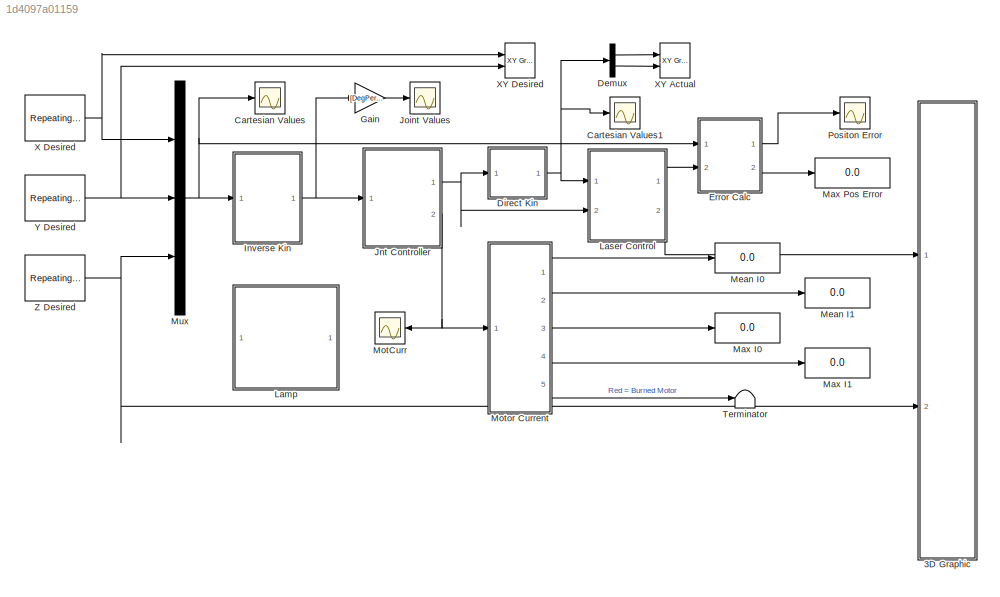
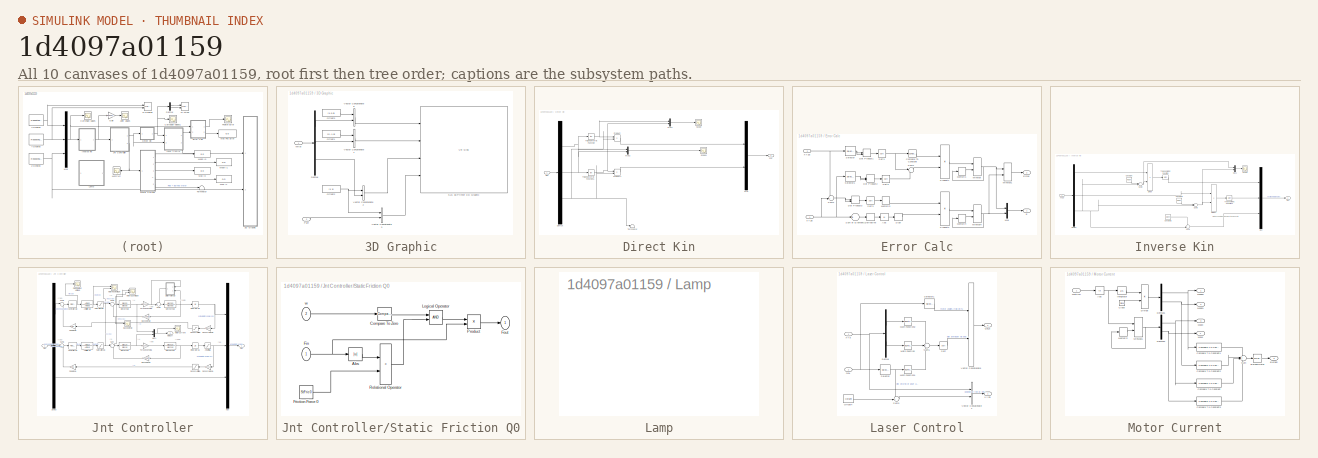
[diagram: thumbnail index - all 10 canvases of the model, root first then tree order]
MODEL slx_1d4097a01159
KIND model
CONFIG AbsTol = auto
CONFIG EnableMultiTasking = on
CONFIG FixedStep = auto
CONFIG InitFcn = CONSTANTS\nDEFAULT\nSystem\nControl
CONFIG MaxStep = auto
CONFIG MinStep = auto
CONFIG PreLoadFcn = CONSTANTS\nDEFAULT\nSystem\nControl
CONFIG RelTol = 1e-3
CONFIG SampleTimeConstraint = Unconstrained
CONFIG Solver = ode45
CONFIG SolverName = ode45
CONFIG StartTime = 0.0
CONFIG StopTime = 20
BLOCK [SubSystem] 3D Graphic
  Ports = [2]
  RequestExecContextInheritance = off
  Variant = off
BLOCK [Demux] 3D Graphic/Demux
  DisplayOption = bar
  Outputs = 3
  Ports = [1, 3]
BLOCK [Constant] 3D Graphic/Offset1
  Value = [0 -1 0]
BLOCK [Constant] 3D Graphic/Offset2
  Value = [1 1]
BLOCK [Constant] 3D Graphic/Offset3
  Value = [1 0 0]
BLOCK [Inport] 3D Graphic/Part
  IconDisplay = Port number
  Port = 2
BLOCK [Reference] 3D Graphic/SLS 3d Printer 3-D Graphic  REF=vrlib/VR Sink
  InstantiateOnLoad = on
  Ports = [4]
  SourceBlock = vrlib/VR Sink
  SourceProductBaseCode = VR
  SourceProductName = Simulink 3D Animation
  SourceType = Virtual Reality Sink
BLOCK [Concatenate] 3D Graphic/Vector Concatenate1
  Ports = [2, 1]
BLOCK [Concatenate] 3D Graphic/Vector Concatenate2
  Ports = [2, 1]
BLOCK [Concatenate] 3D Graphic/Vector Concatenate3
  Ports = [2, 1]
BLOCK [Concatenate] 3D Graphic/Vector Concatenate5
  Ports = [2, 1]
BLOCK [Inport] 3D Graphic/Wrist
  IconDisplay = Port number
BLOCK [Scope] Cartesian Values
  NumInputPorts = 1
  Ports = [1]
  ScopeSpecificationString = Simulink.scopes.TimeScopeBlockCfg('CurrentConfiguration', extmgr.ConfigurationSet(extmgr.Configuration('Core','General UI',true),extmgr.Configuration('Core','Source UI',true),extmgr.Configuration('Sources','WiredSimulink',true,'DataLoggingVariableName','ScopeData1','DataLoggingLimitDataPoints',true,'DataLoggingSaveFormat','Array','DataLoggingDecimation','1','DataLoggingDecimateData',true),extmgr.C...<+1797ch>
BLOCK [Scope] Cartesian Values1
  NumInputPorts = 1
  Ports = [1]
  ScopeSpecificationString = Simulink.scopes.TimeScopeBlockCfg('CurrentConfiguration', extmgr.ConfigurationSet(extmgr.Configuration('Core','General UI',true),extmgr.Configuration('Core','Source UI',true),extmgr.Configuration('Sources','WiredSimulink',true,'DataLoggingVariableName','ScopeData1','DataLoggingLimitDataPoints',true,'DataLoggingSaveFormat','Array','DataLoggingDecimation','1','DataLoggingDecimateData',true),extmgr.C...<+1791ch>
BLOCK [Demux] Demux
  DisplayOption = bar
  Outputs = 2
  Ports = [1, 2]
BLOCK [SubSystem] Direct Kin
  Ports = [1, 1]
  RequestExecContextInheritance = off
  Variant = off
BLOCK [Demux] Direct Kin/Demux
  DisplayOption = bar
  Outputs = 3
  Ports = [1, 3]
BLOCK [Mux] Direct Kin/Mux
  DisplayOption = bar
  Inputs = 2
  Ports = [2, 1]
BLOCK [Mux] Direct Kin/Mux1
  DisplayOption = bar
  Inputs = 2
  Ports = [2, 1]
BLOCK [Mux] Direct Kin/Mux2
  DisplayOption = bar
  Inputs = 2
  Ports = [2, 1]
BLOCK [Product] Direct Kin/Product
  InputSameDT = off
  OutDataTypeStr = Inherit: Inherit via internal rule
  Ports = [2, 1]
  RndMeth = Floor
  SaturateOnIntegerOverflow = off
BLOCK [Product] Direct Kin/Product1
  InputSameDT = off
  OutDataTypeStr = Inherit: Inherit via internal rule
  Ports = [2, 1]
  RndMeth = Floor
  SaturateOnIntegerOverflow = off
BLOCK [Inport] Direct Kin/QaL
  IconDisplay = Port number
BLOCK [Scope] Direct Kin/Scope
  NumInputPorts = 1
  Ports = [1]
  ScopeSpecificationString = Simulink.scopes.TimeScopeBlockCfg('CurrentConfiguration', extmgr.ConfigurationSet(extmgr.Configuration('Core','General UI',true),extmgr.Configuration('Core','Source UI',true),extmgr.Configuration('Sources','WiredSimulink',true,'DataLoggingVariableName','ScopeData1'),extmgr.Configuration('Visuals','Time Domain',true,'SerializedDisplays',{struct('MinYLimReal','-0.84789','MaxYLimReal','0.09421','YLab...<+1433ch>
BLOCK [Scope] Direct Kin/Scope1
  NumInputPorts = 1
  Ports = [1]
  ScopeSpecificationString = Simulink.scopes.TimeScopeBlockCfg('CurrentConfiguration', extmgr.ConfigurationSet(extmgr.Configuration('Core','General UI',true),extmgr.Configuration('Core','Source UI',true),extmgr.Configuration('Sources','WiredSimulink',true,'DataLoggingVariableName','ScopeData3'),extmgr.Configuration('Visuals','Time Domain',true,'SerializedDisplays',{struct('MinYLimReal','-0.72658','MaxYLimReal','0.08073','YLab...<+1402ch>
BLOCK [Terminator] Direct Kin/Terminator
BLOCK [Trigonometry] Direct Kin/Trigonometric Function
  Operator = tan
  Ports = [1, 1]
BLOCK [Trigonometry] Direct Kin/Trigonometric Function1
  Operator = tan
  Ports = [1, 1]
BLOCK [Outport] Direct Kin/XYa
  IconDisplay = Port number
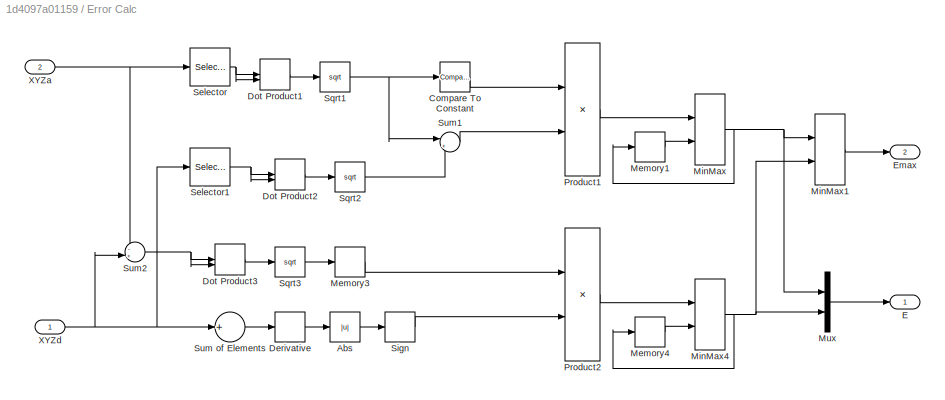
BLOCK [SubSystem] Error Calc
  Ports = [2, 2]
  RequestExecContextInheritance = off
  Variant = off
BLOCK [Abs] Error Calc/Abs
  SaturateOnIntegerOverflow = off
BLOCK [Reference] Error Calc/Compare To Constant  REF=simulink/Logic and Bit
Operations/Compare
To Constant
  Ports = [1, 1]
  SourceBlock = simulink/Logic and Bit\nOperations/Compare\nTo Constant
  SourceProductBaseCode = SL
  SourceProductName = Simulink
  SourceType = Compare To Constant
BLOCK [Derivative] Error Calc/Derivative
BLOCK [DotProduct] Error Calc/Dot Product1
  OutDataTypeStr = Inherit: Inherit via internal rule
BLOCK [DotProduct] Error Calc/Dot Product2
  OutDataTypeStr = Inherit: Inherit via internal rule
BLOCK [DotProduct] Error Calc/Dot Product3
  OutDataTypeStr = Inherit: Inherit via internal rule
BLOCK [Outport] Error Calc/E
  IconDisplay = Port number
BLOCK [Outport] Error Calc/Emax
  IconDisplay = Port number
  Port = 2
BLOCK [Memory] Error Calc/Memory1
BLOCK [Memory] Error Calc/Memory3
BLOCK [Memory] Error Calc/Memory4
BLOCK [MinMax] Error Calc/MinMax
  Function = max
  InputSameDT = off
  Inputs = 2
  Ports = [2, 1]
  SaturateOnIntegerOverflow = off
BLOCK [MinMax] Error Calc/MinMax1
  Function = max
  InputSameDT = off
  Inputs = 2
  Ports = [2, 1]
  SaturateOnIntegerOverflow = off
BLOCK [MinMax] Error Calc/MinMax4
  Function = max
  InputSameDT = off
  Inputs = 2
  Ports = [2, 1]
  SaturateOnIntegerOverflow = off
BLOCK [Mux] Error Calc/Mux
  DisplayOption = bar
  Inputs = 2
  Ports = [2, 1]
BLOCK [Product] Error Calc/Product1
  InputSameDT = off
  OutDataTypeStr = Inherit: Inherit via internal rule
  Ports = [2, 1]
  RndMeth = Floor
  SaturateOnIntegerOverflow = off
BLOCK [Product] Error Calc/Product2
  InputSameDT = off
  OutDataTypeStr = Inherit: Inherit via internal rule
  Ports = [2, 1]
  RndMeth = Floor
  SaturateOnIntegerOverflow = off
BLOCK [Selector] Error Calc/Selector
  IndexOptions = Index vector (dialog)
  Indices = [1 2]
  InputPortWidth = 3
  OutputSizes = 1
  Ports = [1, 1]
BLOCK [Selector] Error Calc/Selector1
  IndexOptions = Index vector (dialog)
  Indices = [1 2]
  InputPortWidth = 3
  OutputSizes = 1
  Ports = [1, 1]
BLOCK [Signum] Error Calc/Sign
BLOCK [Sqrt] Error Calc/Sqrt1
BLOCK [Sqrt] Error Calc/Sqrt2
BLOCK [Sqrt] Error Calc/Sqrt3
BLOCK [Sum] Error Calc/Sum of Elements
  InputSameDT = off
  Inputs = +
  OutDataTypeStr = Inherit: Inherit via internal rule
  Ports = [1, 1]
  SaturateOnIntegerOverflow = off
BLOCK [Sum] Error Calc/Sum1
  IconShape = round
  InputSameDT = off
  Inputs = |+-
  OutDataTypeStr = Inherit: Inherit via internal rule
  Ports = [2, 1]
  SaturateOnIntegerOverflow = off
BLOCK [Sum] Error Calc/Sum2
  IconShape = round
  InputSameDT = off
  Inputs = -+|
  OutDataTypeStr = Inherit: Inherit via internal rule
  Ports = [2, 1]
  SaturateOnIntegerOverflow = off
BLOCK [Inport] Error Calc/XYZa
  IconDisplay = Port number
  Port = 2
BLOCK [Inport] Error Calc/XYZd
  IconDisplay = Port number
BLOCK [Gain] Gain
  Gain = [DegPerRad DegPerRad 1]
  OutDataTypeStr = Inherit: Inherit via internal rule
  ParamDataTypeStr = Inherit: Inherit via internal rule
  SaturateOnIntegerOverflow = off
BLOCK [SubSystem] Inverse Kin
  Ports = [1, 1]
  RequestExecContextInheritance = off
  Variant = off
BLOCK [Constant] Inverse Kin/Constant
  Value = Height
BLOCK [Constant] Inverse Kin/Constant1
  Value = Height
BLOCK [Constant] Inverse Kin/Constant2
  Value = Height
BLOCK [Demux] Inverse Kin/Demux
  DisplayOption = bar
  Outputs = 3
  Ports = [1, 3]
BLOCK [Product] Inverse Kin/Divide
  InputSameDT = off
  Inputs = */
  OutDataTypeStr = Inherit: Inherit via internal rule
  Ports = [2, 1]
  RndMeth = Floor
  SaturateOnIntegerOverflow = off
BLOCK [Product] Inverse Kin/Divide1
  InputSameDT = off
  Inputs = */
  OutDataTypeStr = Inherit: Inherit via internal rule
  Ports = [2, 1]
  RndMeth = Floor
  SaturateOnIntegerOverflow = off
BLOCK [Mux] Inverse Kin/Mux
  DisplayOption = bar
  Inputs = 3
  Ports = [3, 1]
BLOCK [Mux] Inverse Kin/Mux1
  DisplayOption = bar
  Inputs = 2
  Ports = [2, 1]
BLOCK [Outport] Inverse Kin/QaL
  IconDisplay = Port number
BLOCK [Scope] Inverse Kin/Scope
  NumInputPorts = 1
  Ports = [1]
  ScopeSpecificationString = Simulink.scopes.TimeScopeBlockCfg('CurrentConfiguration', extmgr.ConfigurationSet(extmgr.Configuration('Core','General UI',true),extmgr.Configuration('Core','Source UI',true),extmgr.Configuration('Sources','WiredSimulink',true,'DataLoggingVariableName','ScopeData2'),extmgr.Configuration('Visuals','Time Domain',true,'SerializedDisplays',{struct('MinYLimReal','183.125','MaxYLimReal','201.875','YLabe...<+1394ch>
BLOCK [Sum] Inverse Kin/Sum1
  IconShape = round
  InputSameDT = off
  Inputs = +-|
  OutDataTypeStr = Inherit: Inherit via internal rule
  Ports = [2, 1]
  SaturateOnIntegerOverflow = off
BLOCK [Sum] Inverse Kin/Sum2
  IconShape = round
  InputSameDT = off
  Inputs = +-|
  OutDataTypeStr = Inherit: Inherit via internal rule
  Ports = [2, 1]
  SaturateOnIntegerOverflow = off
BLOCK [Sum] Inverse Kin/Sum3
  IconShape = round
  InputSameDT = off
  Inputs = +-|
  OutDataTypeStr = Inherit: Inherit via internal rule
  Ports = [2, 1]
  SaturateOnIntegerOverflow = off
BLOCK [Trigonometry] Inverse Kin/Trigonometric Function
  Operator = atan
  Ports = [1, 1]
BLOCK [Trigonometry] Inverse Kin/Trigonometric Function1
  Operator = atan
  Ports = [1, 1]
BLOCK [Inport] Inverse Kin/XYZd
  IconDisplay = Port number
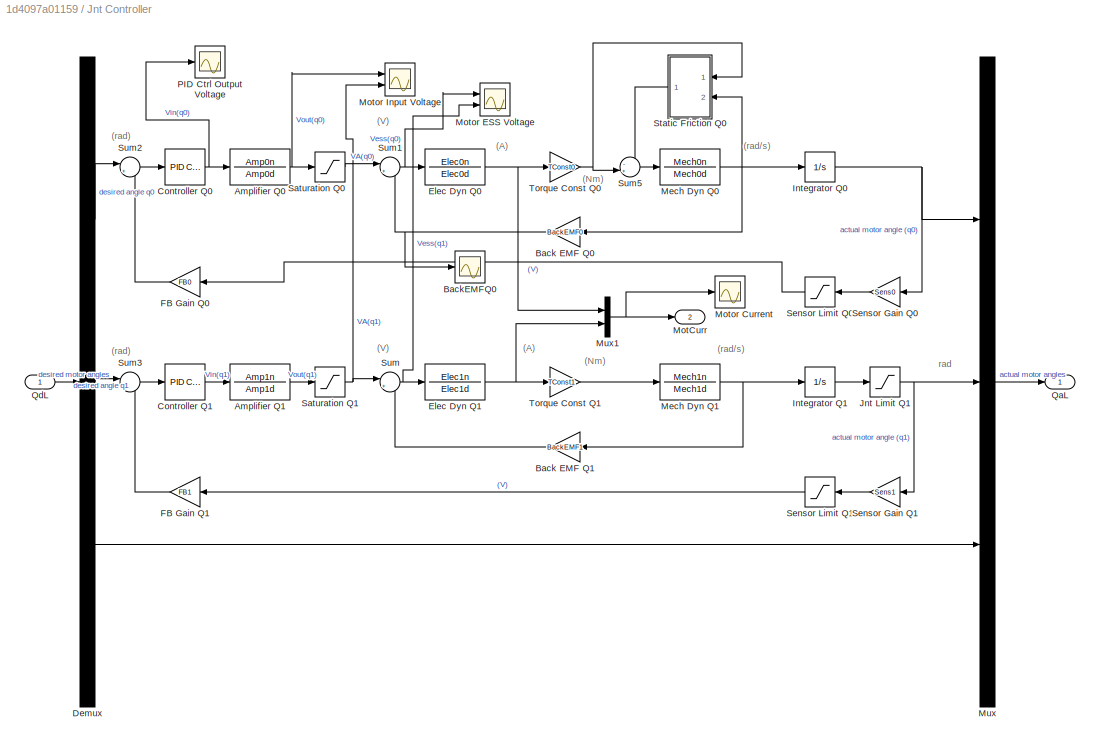
BLOCK [SubSystem] Jnt Controller
  Ports = [1, 2]
  RequestExecContextInheritance = off
  Variant = off
BLOCK [TransferFcn] Jnt Controller/Amplifier Q0
  Denominator = Amp0d
  Numerator = Amp0n
BLOCK [TransferFcn] Jnt Controller/Amplifier Q1
  Denominator = Amp1d
  Numerator = Amp1n
BLOCK [Gain] Jnt Controller/Back EMF Q0
  Gain = BackEMF0
  OutDataTypeStr = Inherit: Inherit via internal rule
  ParamDataTypeStr = Inherit: Inherit via internal rule
  SaturateOnIntegerOverflow = off
BLOCK [Gain] Jnt Controller/Back EMF Q1
  Gain = BackEMF1
  OutDataTypeStr = Inherit: Inherit via internal rule
  ParamDataTypeStr = Inherit: Inherit via internal rule
  SaturateOnIntegerOverflow = off
BLOCK [Scope] Jnt Controller/BackEMFQ0
  NumInputPorts = 1
  Ports = [1]
  ScopeSpecificationString = Simulink.scopes.TimeScopeBlockCfg('CurrentConfiguration', extmgr.ConfigurationSet(extmgr.Configuration('Core','General UI',true),extmgr.Configuration('Core','Source UI',true),extmgr.Configuration('Sources','WiredSimulink',true,'DataLoggingVariableName','ScopeData2'),extmgr.Configuration('Visuals','Time Domain',true),extmgr.Configuration('Tools','Plot Navigation',true),extmgr.Configuration('Tools',...<+58ch>
BLOCK [Reference] Jnt Controller/Controller Q0  REF=simulink/Continuous/PID Controller
  Ports = [1, 1]
  SourceBlock = simulink/Continuous/PID Controller
  SourceProductBaseCode = SL
  SourceProductName = Simulink
  SourceType = PID 1dof
BLOCK [Reference] Jnt Controller/Controller Q1  REF=simulink/Continuous/PID Controller
  Ports = [1, 1]
  SourceBlock = simulink/Continuous/PID Controller
  SourceProductBaseCode = SL
  SourceProductName = Simulink
  SourceType = PID 1dof
BLOCK [Demux] Jnt Controller/Demux
  DisplayOption = bar
  Outputs = 3
  Ports = [1, 3]
BLOCK [TransferFcn] Jnt Controller/Elec Dyn Q0
  Denominator = Elec0d
  Numerator = Elec0n
BLOCK [TransferFcn] Jnt Controller/Elec Dyn Q1
  Denominator = Elec1d
  Numerator = Elec1n
BLOCK [Gain] Jnt Controller/FB Gain Q0
  Gain = FB0
  OutDataTypeStr = Inherit: Inherit via internal rule
  ParamDataTypeStr = Inherit: Inherit via internal rule
  SaturateOnIntegerOverflow = off
BLOCK [Gain] Jnt Controller/FB Gain Q1
  Gain = FB1
  OutDataTypeStr = Inherit: Inherit via internal rule
  ParamDataTypeStr = Inherit: Inherit via internal rule
  SaturateOnIntegerOverflow = off
BLOCK [Integrator] Jnt Controller/Integrator Q0
  Ports = [1, 1]
BLOCK [Integrator] Jnt Controller/Integrator Q1
  Ports = [1, 1]
BLOCK [Saturate] Jnt Controller/Jnt Limit Q1
  InputPortMap = u0
  LowerLimit = -JntSat1
  Ports = [1, 1]
  UpperLimit = JntSat1
BLOCK [TransferFcn] Jnt Controller/Mech Dyn Q0
  Denominator = Mech0d
  Numerator = Mech0n
BLOCK [TransferFcn] Jnt Controller/Mech Dyn Q1
  Denominator = Mech1d
  Numerator = Mech1n
BLOCK [Outport] Jnt Controller/MotCurr
  IconDisplay = Port number
  Port = 2
BLOCK [Scope] Jnt Controller/Motor Current
  NumInputPorts = 1
  Ports = [1]
  ScopeSpecificationString = Simulink.scopes.TimeScopeBlockCfg('CurrentConfiguration', extmgr.ConfigurationSet(extmgr.Configuration('Core','General UI',true),extmgr.Configuration('Core','Source UI',true),extmgr.Configuration('Sources','WiredSimulink',true,'DataLoggingVariableName','ScopeData2'),extmgr.Configuration('Visuals','Time Domain',true),extmgr.Configuration('Tools','Plot Navigation',true),extmgr.Configuration('Tools',...<+58ch>
BLOCK [Scope] Jnt Controller/Motor ESS Voltage
  NumInputPorts = 2
  Ports = [2]
  ScopeSpecificationString = Simulink.scopes.TimeScopeBlockCfg('CurrentConfiguration', extmgr.ConfigurationSet(extmgr.Configuration('Core','General UI',true),extmgr.Configuration('Core','Source UI',true),extmgr.Configuration('Sources','WiredSimulink',true,'DataLoggingVariableName','ScopeData1'),extmgr.Configuration('Visuals','Time Domain',true,'SerializedDisplays',{struct('MinYLimReal','-2.6327','MaxYLimReal','2.63553','YLabe...<+1428ch>
BLOCK [Scope] Jnt Controller/Motor Input Voltage
  NumInputPorts = 2
  Ports = [2]
  ScopeSpecificationString = Simulink.scopes.TimeScopeBlockCfg('CurrentConfiguration', extmgr.ConfigurationSet(extmgr.Configuration('Core','General UI',true),extmgr.Configuration('Core','Source UI',true),extmgr.Configuration('Sources','WiredSimulink',true,'DataLoggingVariableName','ScopeData1'),extmgr.Configuration('Visuals','Time Domain',true,'SerializedDisplays',{struct('MinYLimReal','-2.6404','MaxYLimReal','2.64352','YLabe...<+1426ch>
BLOCK [Mux] Jnt Controller/Mux
  DisplayOption = bar
  Inputs = 3
  Ports = [3, 1]
BLOCK [Mux] Jnt Controller/Mux1
  DisplayOption = bar
  Inputs = 2
  Ports = [2, 1]
BLOCK [Scope] Jnt Controller/PID Ctrl Output Voltage
  NumInputPorts = 1
  Ports = [1]
  ScopeSpecificationString = Simulink.scopes.TimeScopeBlockCfg('CurrentConfiguration', extmgr.ConfigurationSet(extmgr.Configuration('Core','General UI',true),extmgr.Configuration('Core','Source UI',true),extmgr.Configuration('Sources','WiredSimulink',true,'DataLoggingVariableName','ScopeData1'),extmgr.Configuration('Visuals','Time Domain',true,'SerializedDisplays',{struct('MinYLimReal','-1.01541','MaxYLimReal','1.53253','YLab...<+1440ch>
BLOCK [Outport] Jnt Controller/QaL
  IconDisplay = Port number
BLOCK [Inport] Jnt Controller/QdL
  IconDisplay = Port number
BLOCK [Saturate] Jnt Controller/Saturation Q0
  InputPortMap = u0
  LowerLimit = -AmpSat0
  Ports = [1, 1]
  UpperLimit = AmpSat0
BLOCK [Saturate] Jnt Controller/Saturation Q1
  InputPortMap = u0
  LowerLimit = -AmpSat1
  Ports = [1, 1]
  UpperLimit = AmpSat1
BLOCK [Gain] Jnt Controller/Sensor Gain Q0
  Gain = Sens0
  OutDataTypeStr = Inherit: Inherit via internal rule
  ParamDataTypeStr = Inherit: Inherit via internal rule
  SaturateOnIntegerOverflow = off
BLOCK [Gain] Jnt Controller/Sensor Gain Q1
  Gain = Sens1
  OutDataTypeStr = Inherit: Inherit via internal rule
  ParamDataTypeStr = Inherit: Inherit via internal rule
  SaturateOnIntegerOverflow = off
BLOCK [Saturate] Jnt Controller/Sensor Limit Q0
  InputPortMap = u0
  LowerLimit = -SensSat0
  Ports = [1, 1]
  UpperLimit = SensSat0
BLOCK [Saturate] Jnt Controller/Sensor Limit Q1
  InputPortMap = u0
  LowerLimit = -SensSat1
  Ports = [1, 1]
  UpperLimit = SensSat1
BLOCK [SubSystem] Jnt Controller/Static Friction Q0
  Ports = [2, 1]
  RequestExecContextInheritance = off
  Variant = off
BLOCK [Abs] Jnt Controller/Static Friction Q0/Abs
  SaturateOnIntegerOverflow = off
BLOCK [Reference] Jnt Controller/Static Friction Q0/Compare To Zero  REF=simulink/Logic and Bit
Operations/Compare
To Zero
  Ports = [1, 1]
  SourceBlock = simulink/Logic and Bit\nOperations/Compare\nTo Zero
  SourceProductBaseCode = SL
  SourceProductName = Simulink
  SourceType = Compare To Zero
BLOCK [Inport] Jnt Controller/Static Friction Q0/Fin
  IconDisplay = Port number
BLOCK [Outport] Jnt Controller/Static Friction Q0/Fout
  IconDisplay = Port number
BLOCK [Constant] Jnt Controller/Static Friction Q0/Friction Force 0
  Value = StFric0
BLOCK [Logic] Jnt Controller/Static Friction Q0/Logical Operator
  AllPortsSameDT = off
  OutDataTypeStr = boolean
  Ports = [2, 1]
BLOCK [Product] Jnt Controller/Static Friction Q0/Product
  InputSameDT = off
  OutDataTypeStr = Inherit: Inherit via internal rule
  Ports = [2, 1]
  RndMeth = Floor
  SaturateOnIntegerOverflow = off
BLOCK [RelationalOperator] Jnt Controller/Static Friction Q0/Relational Operator
  InputSameDT = off
  Operator = <
  OutDataTypeStr = boolean
  Ports = [2, 1]
  RndMeth = Simplest
BLOCK [Inport] Jnt Controller/Static Friction Q0/w
  IconDisplay = Port number
  Port = 2
BLOCK [Sum] Jnt Controller/Sum
  IconShape = round
  InputSameDT = off
  Inputs = |+-
  OutDataTypeStr = Inherit: Inherit via internal rule
  Ports = [2, 1]
  SaturateOnIntegerOverflow = off
BLOCK [Sum] Jnt Controller/Sum1
  IconShape = round
  InputSameDT = off
  Inputs = |+-
  OutDataTypeStr = Inherit: Inherit via internal rule
  Ports = [2, 1]
  SaturateOnIntegerOverflow = off
BLOCK [Sum] Jnt Controller/Sum2
  IconShape = round
  InputSameDT = off
  Inputs = |+-
  OutDataTypeStr = Inherit: Inherit via internal rule
  Ports = [2, 1]
  SaturateOnIntegerOverflow = off
BLOCK [Sum] Jnt Controller/Sum3
  IconShape = round
  InputSameDT = off
  Inputs = |+-
  OutDataTypeStr = Inherit: Inherit via internal rule
  Ports = [2, 1]
  SaturateOnIntegerOverflow = off
BLOCK [Sum] Jnt Controller/Sum5
  IconShape = round
  InputSameDT = off
  Inputs = -+|
  OutDataTypeStr = Inherit: Inherit via internal rule
  Ports = [2, 1]
  SaturateOnIntegerOverflow = off
BLOCK [Gain] Jnt Controller/Torque Const Q0
  Gain = TConst0
  OutDataTypeStr = Inherit: Inherit via internal rule
  ParamDataTypeStr = Inherit: Inherit via internal rule
  SaturateOnIntegerOverflow = off
BLOCK [Gain] Jnt Controller/Torque Const Q1
  Gain = TConst1
  OutDataTypeStr = Inherit: Inherit via internal rule
  ParamDataTypeStr = Inherit: Inherit via internal rule
  SaturateOnIntegerOverflow = off
BLOCK [Scope] Joint Values
  NumInputPorts = 1
  Ports = [1]
  ScopeSpecificationString = Simulink.scopes.TimeScopeBlockCfg('CurrentConfiguration', extmgr.ConfigurationSet(extmgr.Configuration('Core','General UI',true),extmgr.Configuration('Core','Source UI',true),extmgr.Configuration('Sources','WiredSimulink',true,'DataLoggingVariableName','ScopeData1','DataLoggingLimitDataPoints',true,'DataLoggingSaveFormat','Array','DataLoggingDecimation','1','DataLoggingDecimateData',true),extmgr.C...<+1760ch>
BLOCK [SubSystem] Lamp
  DialogController = hmiCreateDDGDialog
  IsWebBlock = on
  MaskHideContents = on
  Ports = []
  RequestExecContextInheritance = off
  Variant = off
BLOCK [SubSystem] Laser Control
  Ports = [2, 2]
  RequestExecContextInheritance = off
  Variant = off
BLOCK [Demux] Laser Control/Demux
  DisplayOption = bar
  Outputs = 2
  Ports = [1, 2]
BLOCK [Math] Laser Control/Math Function
  Operator = magnitude^2
  Ports = [1, 1]
BLOCK [Math] Laser Control/Math Function1
  Operator = magnitude^2
  Ports = [1, 1]
BLOCK [Math] Laser Control/Math Function2
  Operator = magnitude^2
  Ports = [1, 1]
BLOCK [Constant] Laser Control/Offset4
  Value = Height
BLOCK [Inport] Laser Control/QaL
  IconDisplay = Port number
  Port = 2
BLOCK [Outport] Laser Control/QaLa
  IconDisplay = Port number
  Port = 2
BLOCK [Selector] Laser Control/Selector
  IndexOptions = Index vector (dialog)
  Indices = 3
  InputPortWidth = 3
  OutputSizes = 1
  Ports = [1, 1]
BLOCK [Selector] Laser Control/Selector1
  IndexOptions = Index vector (dialog)
  Indices = [1 2]
  InputPortWidth = 3
  OutputSizes = 1
  Ports = [1, 1]
BLOCK [Sqrt] Laser Control/Sqrt
BLOCK [Sum] Laser Control/Sum1
  IconShape = round
  InputSameDT = off
  Inputs = +++
  OutDataTypeStr = Inherit: Inherit via internal rule
  Ports = [3, 1]
  SaturateOnIntegerOverflow = off
BLOCK [Sum] Laser Control/Sum3
  IconShape = round
  InputSameDT = off
  Inputs = -+|
  OutDataTypeStr = Inherit: Inherit via internal rule
  Ports = [2, 1]
  SaturateOnIntegerOverflow = off
BLOCK [Concatenate] Laser Control/Vector Concatenate
  Ports = [2, 1]
BLOCK [Concatenate] Laser Control/Vector Concatenate1
  Ports = [2, 1]
BLOCK [Outport] Laser Control/XYZa
  IconDisplay = Port number
BLOCK [Inport] Laser Control/XYa
  IconDisplay = Port number
BLOCK [Display] Max I0
  Decimation = 1
  Ports = [1]
BLOCK [Display] Max I1
  Decimation = 1
  Ports = [1]
BLOCK [Display] Max Pos Error
  Decimation = 1
  Ports = [1]
BLOCK [Display] Mean I0
  Decimation = 1
  Ports = [1]
BLOCK [Display] Mean I1
  Decimation = 1
  Ports = [1]
BLOCK [Scope] MotCurr
  NumInputPorts = 1
  Ports = [1]
  ScopeSpecificationString = Simulink.scopes.TimeScopeBlockCfg('CurrentConfiguration', extmgr.ConfigurationSet(extmgr.Configuration('Core','General UI',true),extmgr.Configuration('Core','Source UI',true),extmgr.Configuration('Sources','WiredSimulink',true,'DataLoggingVariableName','ScopeData2','DataLoggingSaveFormat','Array','DataLoggingDecimation','1','DataLoggingDecimateData',true),extmgr.Configuration('Visuals','Time Domai...<+1667ch>
BLOCK [SubSystem] Motor Current
  Ports = [1, 5]
  RequestExecContextInheritance = off
  Variant = off
BLOCK [Abs] Motor Current/Abs
  SaturateOnIntegerOverflow = off
BLOCK [Outport] Motor Current/Burned
  IconDisplay = Port number
  Port = 5
BLOCK [Reference] Motor Current/Burned Motor  REF=simulink/Logic and Bit
Operations/Compare
To Zero
  Ports = [1, 1]
  SourceBlock = simulink/Logic and Bit\nOperations/Compare\nTo Zero
  SourceProductBaseCode = SL
  SourceProductName = Simulink
  SourceType = Compare To Zero
BLOCK [Clock] Motor Current/Clock
BLOCK [Reference] Motor Current/Compare To Constant  REF=simulink/Logic and Bit
Operations/Compare
To Constant
  Ports = [1, 1]
  SourceBlock = simulink/Logic and Bit\nOperations/Compare\nTo Constant
  SourceProductBaseCode = SL
  SourceProductName = Simulink
  SourceType = Compare To Constant
BLOCK [Reference] Motor Current/Compare To Constant1  REF=simulink/Logic and Bit
Operations/Compare
To Constant
  Ports = [1, 1]
  SourceBlock = simulink/Logic and Bit\nOperations/Compare\nTo Constant
  SourceProductBaseCode = SL
  SourceProductName = Simulink
  SourceType = Compare To Constant
BLOCK [Reference] Motor Current/Compare To Constant2  REF=simulink/Logic and Bit
Operations/Compare
To Constant
  Ports = [1, 1]
  SourceBlock = simulink/Logic and Bit\nOperations/Compare\nTo Constant
  SourceProductBaseCode = SL
  SourceProductName = Simulink
  SourceType = Compare To Constant
BLOCK [Reference] Motor Current/Compare To Constant3  REF=simulink/Logic and Bit
Operations/Compare
To Constant
  Ports = [1, 1]
  SourceBlock = simulink/Logic and Bit\nOperations/Compare\nTo Constant
  SourceProductBaseCode = SL
  SourceProductName = Simulink
  SourceType = Compare To Constant
BLOCK [Demux] Motor Current/Demux1
  DisplayOption = bar
  Outputs = 2
  Ports = [1, 2]
BLOCK [Demux] Motor Current/Demux2
  DisplayOption = bar
  Outputs = 2
  Ports = [1, 2]
BLOCK [Product] Motor Current/Divide
  InputSameDT = off
  Inputs = */
  OutDataTypeStr = Inherit: Inherit via internal rule
  Ports = [2, 1]
  RndMeth = Floor
  SaturateOnIntegerOverflow = off
BLOCK [Integrator] Motor Current/Integrator
  Ports = [1, 1]
BLOCK [Outport] Motor Current/Max0
  IconDisplay = Port number
  Port = 3
BLOCK [Outport] Motor Current/Max1
  IconDisplay = Port number
  Port = 4
BLOCK [Outport] Motor Current/Mean0
  IconDisplay = Port number
BLOCK [Outport] Motor Current/Mean1
  IconDisplay = Port number
  Port = 2
BLOCK [Memory] Motor Current/Memory2
BLOCK [MinMax] Motor Current/MinMax1
  Function = max
  InputSameDT = off
  Inputs = 2
  Ports = [2, 1]
  SaturateOnIntegerOverflow = off
BLOCK [Inport] Motor Current/MotCurr
  IconDisplay = Port number
BLOCK [Sum] Motor Current/Sum
  IconShape = round
  InputSameDT = off
  Inputs = ++++
  OutDataTypeStr = Inherit: Inherit via internal rule
  Ports = [4, 1]
  SaturateOnIntegerOverflow = off
BLOCK [Mux] Mux
  DisplayOption = bar
  Inputs = 3
  Ports = [3, 1]
BLOCK [Scope] Positon Error
  NumInputPorts = 1
  Ports = [1]
  ScopeSpecificationString = Simulink.scopes.TimeScopeBlockCfg('CurrentConfiguration', extmgr.ConfigurationSet(extmgr.Configuration('Core','General UI',true),extmgr.Configuration('Core','Source UI',true),extmgr.Configuration('Sources','WiredSimulink',true,'DataLoggingVariableName','ScopeData1','DataLoggingSaveFormat','Array','DataLoggingDecimation','1','DataLoggingDecimateData',true),extmgr.Configuration('Visuals','Time Domai...<+1804ch>
BLOCK [Terminator] Terminator
BLOCK [Reference] X Desired  REF=simulink/Sources/Repeating
Sequence
Interpolated
  Ports = [0, 1]
  SourceBlock = simulink/Sources/Repeating\nSequence\nInterpolated
  SourceProductBaseCode = SL
  SourceProductName = Simulink
  SourceType = Repeating Sequence Interpolated
BLOCK [Reference] XY Actual  REF=simulink/Sinks/XY Graph
  Ports = [2]
  SourceBlock = simulink/Sinks/XY Graph
  SourceProductBaseCode = SL
  SourceProductName = Simulink
  SourceType = XY scope.
BLOCK [Reference] XY Desired  REF=simulink/Sinks/XY Graph
  Ports = [2]
  SourceBlock = simulink/Sinks/XY Graph
  SourceProductBaseCode = SL
  SourceProductName = Simulink
  SourceType = XY scope.
BLOCK [Reference] Y Desired  REF=simulink/Sources/Repeating
Sequence
Interpolated
  Ports = [0, 1]
  SourceBlock = simulink/Sources/Repeating\nSequence\nInterpolated
  SourceProductBaseCode = SL
  SourceProductName = Simulink
  SourceType = Repeating Sequence Interpolated
BLOCK [Reference] Z Desired  REF=simulink/Sources/Repeating
Sequence
Interpolated
  Ports = [0, 1]
  SourceBlock = simulink/Sources/Repeating\nSequence\nInterpolated
  SourceProductBaseCode = SL
  SourceProductName = Simulink
  SourceType = Repeating Sequence Interpolated
ANNOTATION Inverse Kin: Distance between top of part and laser tip
ANNOTATION Jnt Controller: (A)
ANNOTATION Jnt Controller: (Nm)
ANNOTATION Jnt Controller: (V)
ANNOTATION Jnt Controller: (rad)
ANNOTATION Jnt Controller: (rad/s)
ANNOTATION Jnt Controller: rad
LINE 3D Graphic/Demux:1 -> 3D Graphic/Vector Concatenate5:2
LINE 3D Graphic/Demux:2 -> 3D Graphic/Vector Concatenate1:2
LINE 3D Graphic/Demux:3 -> 3D Graphic/Vector Concatenate2:2
LINE 3D Graphic/Offset1:1 -> 3D Graphic/Vector Concatenate1:1
NET 3D Graphic/Offset2:1 -> 3D Graphic/Vector Concatenate2:1, 3D Graphic/Vector Concatenate3:1
LINE 3D Graphic/Offset3:1 -> 3D Graphic/Vector Concatenate5:1
LINE 3D Graphic/Part:1 -> 3D Graphic/Vector Concatenate3:2
LINE 3D Graphic/Vector Concatenate1:1 -> 3D Graphic/SLS 3d Printer 3-D Graphic:2
LINE 3D Graphic/Vector Concatenate2:1 -> 3D Graphic/SLS 3d Printer 3-D Graphic:3
LINE 3D Graphic/Vector Concatenate3:1 -> 3D Graphic/SLS 3d Printer 3-D Graphic:4
LINE 3D Graphic/Vector Concatenate5:1 -> 3D Graphic/SLS 3d Printer 3-D Graphic:1
LINE 3D Graphic/Wrist:1 -> 3D Graphic/Demux:1
LINE Demux:1 -> XY Actual:1
LINE Demux:2 -> XY Actual:2
NET Direct Kin/Demux:1 -> Direct Kin/Mux2:1, Direct Kin/Trigonometric Function:1
NET Direct Kin/Demux:2 -> Direct Kin/Mux2:2, Direct Kin/Trigonometric Function1:1
NET Direct Kin/Demux:3 -> Direct Kin/Product1:2, Direct Kin/Product:2, Direct Kin/Terminator:1
LINE Direct Kin/Mux1:1 -> Direct Kin/Scope:1
LINE Direct Kin/Mux2:1 -> Direct Kin/Scope1:1
LINE Direct Kin/Mux:1 -> Direct Kin/XYa:1
LINE Direct Kin/Product1:1 -> Direct Kin/Mux:2
LINE Direct Kin/Product:1 -> Direct Kin/Mux:1
LINE Direct Kin/QaL:1 -> Direct Kin/Demux:1
NET Direct Kin/Trigonometric Function1:1 -> Direct Kin/Mux1:2, Direct Kin/Product1:1
NET Direct Kin/Trigonometric Function:1 -> Direct Kin/Mux1:1, Direct Kin/Product:1
NET Direct Kin:1 -> Cartesian Values1:1, Demux:1, Laser Control:1
LINE Error Calc/Abs:1 -> Error Calc/Sign:1
LINE Error Calc/Compare To Constant:1 -> Error Calc/Product1:1
LINE Error Calc/Derivative:1 -> Error Calc/Abs:1
LINE Error Calc/Dot Product1:1 -> Error Calc/Sqrt1:1
LINE Error Calc/Dot Product2:1 -> Error Calc/Sqrt2:1
LINE Error Calc/Dot Product3:1 -> Error Calc/Sqrt3:1
LINE Error Calc/Memory1:1 -> Error Calc/MinMax:2
LINE Error Calc/Memory3:1 -> Error Calc/Product2:1
LINE Error Calc/Memory4:1 -> Error Calc/MinMax4:2
LINE Error Calc/MinMax1:1 -> Error Calc/Emax:1
NET Error Calc/MinMax4:1 -> Error Calc/Memory4:1, Error Calc/MinMax1:2, Error Calc/Mux:2
NET Error Calc/MinMax:1 -> Error Calc/Memory1:1, Error Calc/MinMax1:1, Error Calc/Mux:1
LINE Error Calc/Mux:1 -> Error Calc/E:1
LINE Error Calc/Product1:1 -> Error Calc/MinMax:1
LINE Error Calc/Product2:1 -> Error Calc/MinMax4:1
NET Error Calc/Selector1:1 -> Error Calc/Dot Product2:1, Error Calc/Dot Product2:2
NET Error Calc/Selector:1 -> Error Calc/Dot Product1:1, Error Calc/Dot Product1:2
LINE Error Calc/Sign:1 -> Error Calc/Product2:2
NET Error Calc/Sqrt1:1 -> Error Calc/Compare To Constant:1, Error Calc/Sum1:1
LINE Error Calc/Sqrt2:1 -> Error Calc/Sum1:2
LINE Error Calc/Sqrt3:1 -> Error Calc/Memory3:1
LINE Error Calc/Sum of Elements:1 -> Error Calc/Derivative:1
LINE Error Calc/Sum1:1 -> Error Calc/Product1:2
NET Error Calc/Sum2:1 -> Error Calc/Dot Product3:1, Error Calc/Dot Product3:2
NET Error Calc/XYZa:1 -> Error Calc/Selector:1, Error Calc/Sum2:1
NET Error Calc/XYZd:1 -> Error Calc/Selector1:1, Error Calc/Sum of Elements:1, Error Calc/Sum2:2
LINE Error Calc:1 -> Positon Error:1
LINE Error Calc:2 -> Max Pos Error:1
LINE Gain:1 -> Joint Values:1
LINE Inverse Kin/Constant1:1 -> Inverse Kin/Sum3:1
LINE Inverse Kin/Constant2:1 -> Inverse Kin/Sum1:1
LINE Inverse Kin/Constant:1 -> Inverse Kin/Sum2:1
LINE Inverse Kin/Demux:1 -> Inverse Kin/Divide:1
LINE Inverse Kin/Demux:2 -> Inverse Kin/Divide1:1
NET Inverse Kin/Demux:3 -> Inverse Kin/Sum1:2, Inverse Kin/Sum2:2, Inverse Kin/Sum3:2
LINE Inverse Kin/Divide1:1 -> Inverse Kin/Trigonometric Function1:1
LINE Inverse Kin/Divide:1 -> Inverse Kin/Trigonometric Function:1
LINE Inverse Kin/Mux1:1 -> Inverse Kin/Scope:1
LINE Inverse Kin/Mux:1 -> Inverse Kin/QaL:1
LINE Inverse Kin/Sum1:1 -> Inverse Kin/Mux:3
NET Inverse Kin/Sum2:1 -> Inverse Kin/Divide:2, Inverse Kin/Mux1:1
NET Inverse Kin/Sum3:1 -> Inverse Kin/Divide1:2, Inverse Kin/Mux1:2
LINE Inverse Kin/Trigonometric Function1:1 -> Inverse Kin/Mux:2
LINE Inverse Kin/Trigonometric Function:1 -> Inverse Kin/Mux:1
LINE Inverse Kin/XYZd:1 -> Inverse Kin/Demux:1
NET Inverse Kin:1 -> Gain:1, Jnt Controller:1
NET Jnt Controller/Amplifier Q0:1 -> Jnt Controller/Motor Input Voltage:1, Jnt Controller/Saturation Q0:1
LINE Jnt Controller/Amplifier Q1:1 -> Jnt Controller/Saturation Q1:1
NET Jnt Controller/Back EMF Q0:1 -> Jnt Controller/BackEMFQ0:1, Jnt Controller/Sum1:2
LINE Jnt Controller/Back EMF Q1:1 -> Jnt Controller/Sum:2
NET Jnt Controller/Controller Q0:1 -> Jnt Controller/Amplifier Q0:1, Jnt Controller/PID Ctrl Output Voltage:1
LINE Jnt Controller/Controller Q1:1 -> Jnt Controller/Amplifier Q1:1
LINE Jnt Controller/Demux:1 -> Jnt Controller/Sum2:1
LINE Jnt Controller/Demux:2 -> Jnt Controller/Sum3:1
LINE Jnt Controller/Demux:3 -> Jnt Controller/Mux:3
NET Jnt Controller/Elec Dyn Q0:1 -> Jnt Controller/Mux1:1, Jnt Controller/Torque Const Q0:1
NET Jnt Controller/Elec Dyn Q1:1 -> Jnt Controller/Mux1:2, Jnt Controller/Torque Const Q1:1
LINE Jnt Controller/FB Gain Q0:1 -> Jnt Controller/Sum2:2
LINE Jnt Controller/FB Gain Q1:1 -> Jnt Controller/Sum3:2
NET Jnt Controller/Integrator Q0:1 -> Jnt Controller/Mux:1, Jnt Controller/Sensor Gain Q0:1
LINE Jnt Controller/Integrator Q1:1 -> Jnt Controller/Jnt Limit Q1:1
NET Jnt Controller/Jnt Limit Q1:1 -> Jnt Controller/Mux:2, Jnt Controller/Sensor Gain Q1:1
NET Jnt Controller/Mech Dyn Q0:1 -> Jnt Controller/Back EMF Q0:1, Jnt Controller/Integrator Q0:1, Jnt Controller/Static Friction Q0:2
NET Jnt Controller/Mech Dyn Q1:1 -> Jnt Controller/Back EMF Q1:1, Jnt Controller/Integrator Q1:1
NET Jnt Controller/Mux1:1 -> Jnt Controller/MotCurr:1, Jnt Controller/Motor Current:1
LINE Jnt Controller/Mux:1 -> Jnt Controller/QaL:1
LINE Jnt Controller/QdL:1 -> Jnt Controller/Demux:1
LINE Jnt Controller/Saturation Q0:1 -> Jnt Controller/Sum1:1
NET Jnt Controller/Saturation Q1:1 -> Jnt Controller/Motor Input Voltage:2, Jnt Controller/Sum:1
LINE Jnt Controller/Sensor Gain Q0:1 -> Jnt Controller/Sensor Limit Q0:1
LINE Jnt Controller/Sensor Gain Q1:1 -> Jnt Controller/Sensor Limit Q1:1
LINE Jnt Controller/Sensor Limit Q0:1 -> Jnt Controller/FB Gain Q0:1
LINE Jnt Controller/Sensor Limit Q1:1 -> Jnt Controller/FB Gain Q1:1
LINE Jnt Controller/Static Friction Q0/Abs:1 -> Jnt Controller/Static Friction Q0/Relational Operator:1
LINE Jnt Controller/Static Friction Q0/Compare To Zero:1 -> Jnt Controller/Static Friction Q0/Logical Operator:1
NET Jnt Controller/Static Friction Q0/Fin:1 -> Jnt Controller/Static Friction Q0/Abs:1, Jnt Controller/Static Friction Q0/Product:2
LINE Jnt Controller/Static Friction Q0/Friction Force 0:1 -> Jnt Controller/Static Friction Q0/Relational Operator:2
LINE Jnt Controller/Static Friction Q0/Logical Operator:1 -> Jnt Controller/Static Friction Q0/Product:1
LINE Jnt Controller/Static Friction Q0/Product:1 -> Jnt Controller/Static Friction Q0/Fout:1
LINE Jnt Controller/Static Friction Q0/Relational Operator:1 -> Jnt Controller/Static Friction Q0/Logical Operator:2
LINE Jnt Controller/Static Friction Q0/w:1 -> Jnt Controller/Static Friction Q0/Compare To Zero:1
LINE Jnt Controller/Static Friction Q0:1 -> Jnt Controller/Sum5:1
NET Jnt Controller/Sum1:1 -> Jnt Controller/Elec Dyn Q0:1, Jnt Controller/Motor ESS Voltage:1
LINE Jnt Controller/Sum2:1 -> Jnt Controller/Controller Q0:1
LINE Jnt Controller/Sum3:1 -> Jnt Controller/Controller Q1:1
LINE Jnt Controller/Sum5:1 -> Jnt Controller/Mech Dyn Q0:1
NET Jnt Controller/Sum:1 -> Jnt Controller/Elec Dyn Q1:1, Jnt Controller/Motor ESS Voltage:2
NET Jnt Controller/Torque Const Q0:1 -> Jnt Controller/Static Friction Q0:1, Jnt Controller/Sum5:2
LINE Jnt Controller/Torque Const Q1:1 -> Jnt Controller/Mech Dyn Q1:1
NET Jnt Controller:1 -> Direct Kin:1, Laser Control:2
NET Jnt Controller:2 -> MotCurr:1, Motor Current:1
LINE Laser Control/Demux:1 -> Laser Control/Math Function2:1
LINE Laser Control/Demux:2 -> Laser Control/Math Function:1
LINE Laser Control/Math Function1:1 -> Laser Control/Sum1:3
LINE Laser Control/Math Function2:1 -> Laser Control/Sum1:1
LINE Laser Control/Math Function:1 -> Laser Control/Sum1:2
LINE Laser Control/Offset4:1 -> Laser Control/Sum3:2
NET Laser Control/QaL:1 -> Laser Control/Selector1:1, Laser Control/Selector:1
LINE Laser Control/Selector1:1 -> Laser Control/Vector Concatenate:1
NET Laser Control/Selector:1 -> Laser Control/Math Function1:1, Laser Control/Sum3:1
LINE Laser Control/Sqrt:1 -> Laser Control/Vector Concatenate:2
LINE Laser Control/Sum1:1 -> Laser Control/Sqrt:1
LINE Laser Control/Sum3:1 -> Laser Control/Vector Concatenate1:2
LINE Laser Control/Vector Concatenate1:1 -> Laser Control/XYZa:1
LINE Laser Control/Vector Concatenate:1 -> Laser Control/QaLa:1
NET Laser Control/XYa:1 -> Laser Control/Demux:1, Laser Control/Vector Concatenate1:1
LINE Laser Control:1 -> Error Calc:2
LINE Laser Control:2 -> 3D Graphic:1
NET Motor Current/Abs:1 -> Motor Current/Integrator:1, Motor Current/MinMax1:1
LINE Motor Current/Burned Motor:1 -> Motor Current/Burned:1
LINE Motor Current/Clock:1 -> Motor Current/Divide:2
LINE Motor Current/Compare To Constant1:1 -> Motor Current/Sum:1
LINE Motor Current/Compare To Constant2:1 -> Motor Current/Sum:2
LINE Motor Current/Compare To Constant3:1 -> Motor Current/Sum:4
LINE Motor Current/Compare To Constant:1 -> Motor Current/Sum:3
NET Motor Current/Demux1:1 -> Motor Current/Compare To Constant1:1, Motor Current/Mean0:1
NET Motor Current/Demux1:2 -> Motor Current/Compare To Constant2:1, Motor Current/Mean1:1
NET Motor Current/Demux2:1 -> Motor Current/Compare To Constant:1, Motor Current/Max0:1
NET Motor Current/Demux2:2 -> Motor Current/Compare To Constant3:1, Motor Current/Max1:1
LINE Motor Current/Divide:1 -> Motor Current/Demux1:1
LINE Motor Current/Integrator:1 -> Motor Current/Divide:1
LINE Motor Current/Memory2:1 -> Motor Current/MinMax1:2
NET Motor Current/MinMax1:1 -> Motor Current/Demux2:1, Motor Current/Memory2:1
LINE Motor Current/MotCurr:1 -> Motor Current/Abs:1
LINE Motor Current/Sum:1 -> Motor Current/Burned Motor:1
LINE Motor Current:1 -> Mean I0:1
LINE Motor Current:2 -> Mean I1:1
LINE Motor Current:3 -> Max I0:1
LINE Motor Current:4 -> Max I1:1
LINE Motor Current:5 -> Terminator:1
NET Mux:1 -> Cartesian Values:1, Error Calc:1, Inverse Kin:1
NET X Desired:1 -> Mux:1, XY Desired:1
NET Y Desired:1 -> Mux:2, XY Desired:2
NET Z Desired:1 -> 3D Graphic:2, Mux:3
note: NET lines group one-source signal fan-out (src -> all destinations, sorted); 1:1 wires keep LINE
